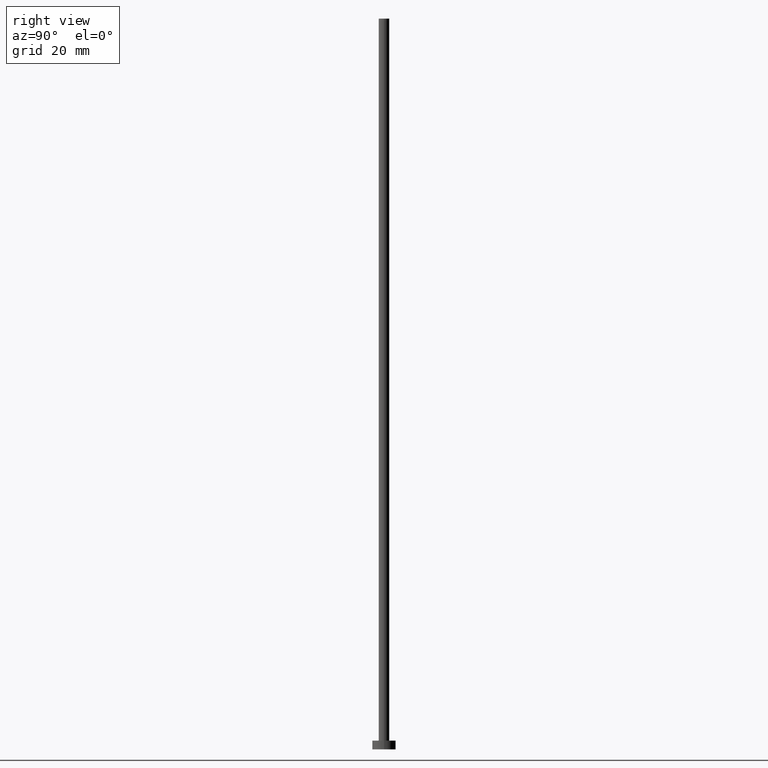
[diagram: clean part render]
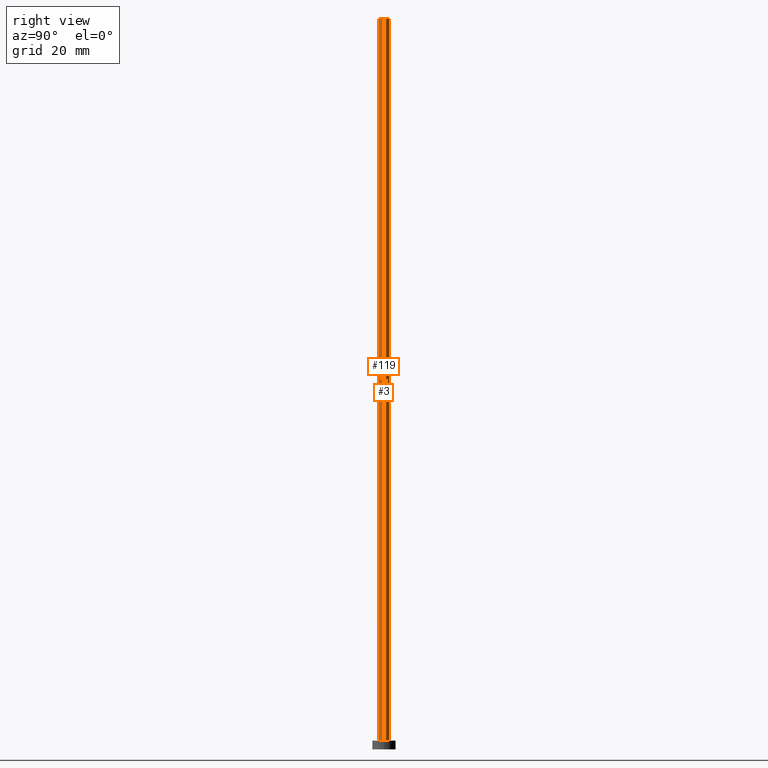
[diagram: same view with one multi-face feature highlighted, each face labeled with its STEP entity id]
A machine part, right view. The highlighted faces form ONE feature: a constant-radius fillet chain: 2 tangent blend faces with common blend radius 0.9 mm. The faces share edges in the B-rep.
Their STEP definitions:
[1] entity #3 (Cylinder):
#3 = ADVANCED_FACE ( 'NONE', ( #32 ), #213, .T. ) ;
#10 = CARTESIAN_POINT ( 'NONE',  ( 0.000000000000000000, 0.000000000000000000, 1.500000000000000000 ) ) ;
#15 = CARTESIAN_POINT ( 'NONE',  ( -0.9000000000000000222, 0.000000000000000000, 125.0000000000000000 ) ) ;
#22 = AXIS2_PLACEMENT_3D ( 'NONE', #229, #200, #246 ) ;
#32 = FACE_OUTER_BOUND ( 'NONE', #69, .T. ) ;
#35 = DIRECTION ( 'NONE',  ( 1.000000000000000000, 0.000000000000000000, 0.000000000000000000 ) ) ;
#37 = CARTESIAN_POINT ( 'NONE',  ( 0.9000000000000000222, 1.102182119232617788E-16, 125.0000000000000000 ) ) ;
#55 = DIRECTION ( 'NONE',  ( 0.000000000000000000, 0.000000000000000000, 1.000000000000000000 ) ) ;
#66 = CARTESIAN_POINT ( 'NONE',  ( -0.9000000000000000222, 0.000000000000000000, 1.500000000000000000 ) ) ;
#67 = VERTEX_POINT ( 'NONE', #15 ) ;
#69 = EDGE_LOOP ( 'NONE', ( #130, #171, #129, #240 ) ) ;
#81 = DIRECTION ( 'NONE',  ( -0.000000000000000000, -0.000000000000000000, -1.000000000000000000 ) ) ;
#89 = CARTESIAN_POINT ( 'NONE',  ( 0.000000000000000000, 0.000000000000000000, 125.0000000000000000 ) ) ;
#90 = VERTEX_POINT ( 'NONE', #153 ) ;
#96 = CARTESIAN_POINT ( 'NONE',  ( -0.9000000000000000222, 0.000000000000000000, 125.0000000000000000 ) ) ;
#116 = DIRECTION ( 'NONE',  ( 1.000000000000000000, 0.000000000000000000, 0.000000000000000000 ) ) ;
#129 = ORIENTED_EDGE ( 'NONE', *, *, #222, .T. ) ;
#130 = ORIENTED_EDGE ( 'NONE', *, *, #244, .F. ) ;
#136 = EDGE_CURVE ( 'NONE', #67, #191, #199, .T. ) ;
#145 = VECTOR ( 'NONE', #176, 1000.000000000000000 ) ;
#148 = AXIS2_PLACEMENT_3D ( 'NONE', #89, #225, #35 ) ;
#153 = CARTESIAN_POINT ( 'NONE',  ( 0.9000000000000000222, 1.102182119232617788E-16, 1.500000000000000000 ) ) ;
#164 = EDGE_CURVE ( 'NONE', #173, #90, #178, .T. ) ;
#171 = ORIENTED_EDGE ( 'NONE', *, *, #164, .T. ) ;
#173 = VERTEX_POINT ( 'NONE', #37 ) ;
#176 = DIRECTION ( 'NONE',  ( -0.000000000000000000, -0.000000000000000000, -1.000000000000000000 ) ) ;
#178 = LINE ( 'NONE', #248, #184 ) ;
#183 = CIRCLE ( 'NONE', #148, 0.9000000000000000222 ) ;
#184 = VECTOR ( 'NONE', #81, 1000.000000000000000 ) ;
#191 = VERTEX_POINT ( 'NONE', #66 ) ;
#199 = LINE ( 'NONE', #96, #145 ) ;
#200 = DIRECTION ( 'NONE',  ( -0.000000000000000000, -0.000000000000000000, -1.000000000000000000 ) ) ;
#208 = AXIS2_PLACEMENT_3D ( 'NONE', #10, #55, #116 ) ;
#213 = CYLINDRICAL_SURFACE ( 'NONE', #22, 0.9000000000000000222 ) ;
#222 = EDGE_CURVE ( 'NONE', #90, #191, #249, .T. ) ;
#225 = DIRECTION ( 'NONE',  ( 0.000000000000000000, 0.000000000000000000, 1.000000000000000000 ) ) ;
#229 = CARTESIAN_POINT ( 'NONE',  ( 0.000000000000000000, 0.000000000000000000, 125.0000000000000000 ) ) ;
#240 = ORIENTED_EDGE ( 'NONE', *, *, #136, .F. ) ;
#244 = EDGE_CURVE ( 'NONE', #173, #67, #183, .T. ) ;
#246 = DIRECTION ( 'NONE',  ( -1.000000000000000000, 0.000000000000000000, 0.000000000000000000 ) ) ;
#248 = CARTESIAN_POINT ( 'NONE',  ( 0.9000000000000000222, 1.102182119232617788E-16, 125.0000000000000000 ) ) ;
#249 = CIRCLE ( 'NONE', #208, 0.9000000000000000222 ) ;
[2] entity #119 (Cylinder):
#5 = AXIS2_PLACEMENT_3D ( 'NONE', #56, #33, #232 ) ;
#7 = ORIENTED_EDGE ( 'NONE', *, *, #164, .F. ) ;
#15 = CARTESIAN_POINT ( 'NONE',  ( -0.9000000000000000222, 0.000000000000000000, 125.0000000000000000 ) ) ;
#28 = CARTESIAN_POINT ( 'NONE',  ( 0.000000000000000000, 0.000000000000000000, 125.0000000000000000 ) ) ;
#33 = DIRECTION ( 'NONE',  ( 0.000000000000000000, 0.000000000000000000, 1.000000000000000000 ) ) ;
#37 = CARTESIAN_POINT ( 'NONE',  ( 0.9000000000000000222, 1.102182119232617788E-16, 125.0000000000000000 ) ) ;
#48 = ORIENTED_EDGE ( 'NONE', *, *, #106, .T. ) ;
#54 = EDGE_CURVE ( 'NONE', #67, #173, #85, .T. ) ;
#56 = CARTESIAN_POINT ( 'NONE',  ( 0.000000000000000000, 0.000000000000000000, 1.500000000000000000 ) ) ;
#57 = DIRECTION ( 'NONE',  ( -0.000000000000000000, -0.000000000000000000, -1.000000000000000000 ) ) ;
#66 = CARTESIAN_POINT ( 'NONE',  ( -0.9000000000000000222, 0.000000000000000000, 1.500000000000000000 ) ) ;
#67 = VERTEX_POINT ( 'NONE', #15 ) ;
#81 = DIRECTION ( 'NONE',  ( -0.000000000000000000, -0.000000000000000000, -1.000000000000000000 ) ) ;
#85 = CIRCLE ( 'NONE', #212, 0.9000000000000000222 ) ;
#90 = VERTEX_POINT ( 'NONE', #153 ) ;
#96 = CARTESIAN_POINT ( 'NONE',  ( -0.9000000000000000222, 0.000000000000000000, 125.0000000000000000 ) ) ;
#106 = EDGE_CURVE ( 'NONE', #191, #90, #124, .T. ) ;
#114 = DIRECTION ( 'NONE',  ( -1.000000000000000000, 0.000000000000000000, 0.000000000000000000 ) ) ;
#119 = ADVANCED_FACE ( 'NONE', ( #121 ), #234, .T. ) ;
#121 = FACE_OUTER_BOUND ( 'NONE', #239, .T. ) ;
#124 = CIRCLE ( 'NONE', #5, 0.9000000000000000222 ) ;
#134 = CARTESIAN_POINT ( 'NONE',  ( 0.000000000000000000, 0.000000000000000000, 125.0000000000000000 ) ) ;
#136 = EDGE_CURVE ( 'NONE', #67, #191, #199, .T. ) ;
#145 = VECTOR ( 'NONE', #176, 1000.000000000000000 ) ;
#152 = DIRECTION ( 'NONE',  ( 0.000000000000000000, 0.000000000000000000, 1.000000000000000000 ) ) ;
#153 = CARTESIAN_POINT ( 'NONE',  ( 0.9000000000000000222, 1.102182119232617788E-16, 1.500000000000000000 ) ) ;
#164 = EDGE_CURVE ( 'NONE', #173, #90, #178, .T. ) ;
#173 = VERTEX_POINT ( 'NONE', #37 ) ;
#176 = DIRECTION ( 'NONE',  ( -0.000000000000000000, -0.000000000000000000, -1.000000000000000000 ) ) ;
#178 = LINE ( 'NONE', #248, #184 ) ;
#184 = VECTOR ( 'NONE', #81, 1000.000000000000000 ) ;
#191 = VERTEX_POINT ( 'NONE', #66 ) ;
#193 = ORIENTED_EDGE ( 'NONE', *, *, #136, .T. ) ;
#196 = ORIENTED_EDGE ( 'NONE', *, *, #54, .F. ) ;
#199 = LINE ( 'NONE', #96, #145 ) ;
#212 = AXIS2_PLACEMENT_3D ( 'NONE', #134, #152, #215 ) ;
#215 = DIRECTION ( 'NONE',  ( 1.000000000000000000, 0.000000000000000000, 0.000000000000000000 ) ) ;
#232 = DIRECTION ( 'NONE',  ( 1.000000000000000000, 0.000000000000000000, 0.000000000000000000 ) ) ;
#234 = CYLINDRICAL_SURFACE ( 'NONE', #252, 0.9000000000000000222 ) ;
#239 = EDGE_LOOP ( 'NONE', ( #7, #196, #193, #48 ) ) ;
#248 = CARTESIAN_POINT ( 'NONE',  ( 0.9000000000000000222, 1.102182119232617788E-16, 125.0000000000000000 ) ) ;
#252 = AXIS2_PLACEMENT_3D ( 'NONE', #28, #57, #114 ) ;